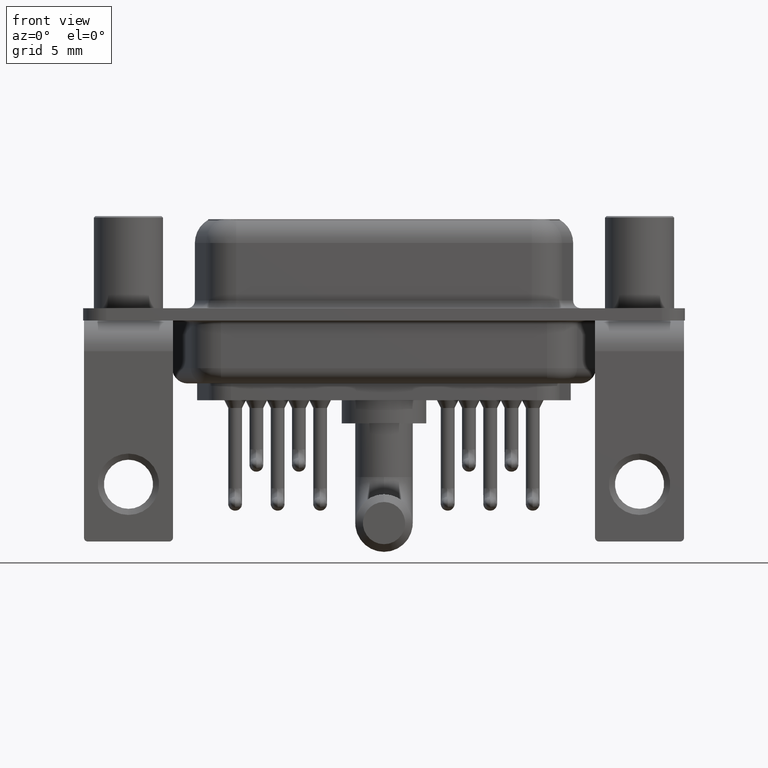
[diagram: clean part render]
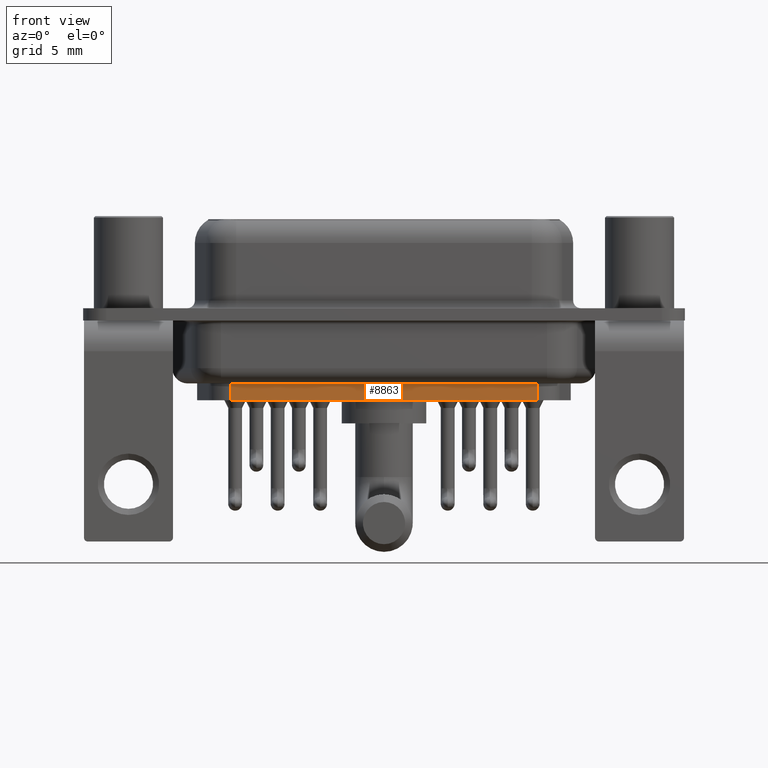
[diagram: same view with one face highlighted and labeled with its STEP entity id]
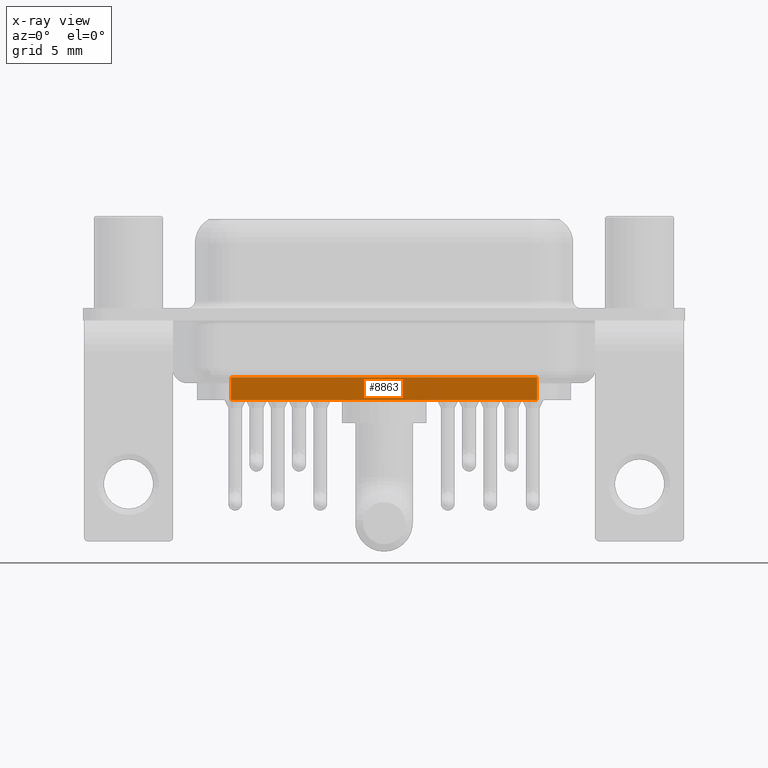
[diagram: x-ray of the same camera — body ghosted, the highlighted face saturated]
A machine part, front view. The second image highlights one B-rep face of the part: STEP entity #8863.
The next image is the same camera in x-ray: the body ghosted, the highlighted face saturated — about 0% of this face is hidden behind the body in this view.
In plain terms, the highlighted planar face has unit normal (-0, -1, 0).
Its self-contained STEP definition (entity closure, byte-faithful):
#409 = VECTOR ( 'NONE', #12339, 1000.000000000000000 ) ;
#1256 = CARTESIAN_POINT ( 'NONE',  ( 6.681144415194952835, -3.499999999999996003, -5.599999999999998757 ) ) ;
#2479 = EDGE_CURVE ( 'NONE', #4713, #19130, #11962, .T. ) ;
#2660 = LINE ( 'NONE', #2881, #19584 ) ;
#2881 = CARTESIAN_POINT ( 'NONE',  ( 26.61885558480503988, -3.500000000000000000, -3.099999999999999645 ) ) ;
#4051 = VERTEX_POINT ( 'NONE', #5896 ) ;
#4232 = CARTESIAN_POINT ( 'NONE',  ( 26.61885558480503988, -3.500000000000000000, -4.096662954709576532 ) ) ;
#4627 = ORIENTED_EDGE ( 'NONE', *, *, #2479, .T. ) ;
#4713 = VERTEX_POINT ( 'NONE', #4232 ) ;
#4806 = VECTOR ( 'NONE', #9658, 1000.000000000000000 ) ;
#5390 = EDGE_CURVE ( 'NONE', #4713, #4051, #2660, .T. ) ;
#5448 = EDGE_CURVE ( 'NONE', #4051, #15230, #9113, .T. ) ;
#5896 = CARTESIAN_POINT ( 'NONE',  ( 26.61885558480503988, -3.500000000000000000, -5.599999999999998757 ) ) ;
#6626 = ORIENTED_EDGE ( 'NONE', *, *, #5390, .F. ) ;
#7521 = VECTOR ( 'NONE', #10354, 1000.000000000000000 ) ;
#8242 = LINE ( 'NONE', #20996, #4806 ) ;
#8643 = ORIENTED_EDGE ( 'NONE', *, *, #5448, .F. ) ;
#8863 = ADVANCED_FACE ( 'NONE', ( #11653 ), #14971, .T. ) ;
#9113 = LINE ( 'NONE', #1256, #409 ) ;
#9658 = DIRECTION ( 'NONE',  ( 0.0000000000000000000, 0.0000000000000000000, -1.000000000000000000 ) ) ;
#10354 = DIRECTION ( 'NONE',  ( -1.000000000000000000, -1.273492887410165195E-16, 0.0000000000000000000 ) ) ;
#10751 = ORIENTED_EDGE ( 'NONE', *, *, #14014, .T. ) ;
#10831 = DIRECTION ( 'NONE',  ( 0.0000000000000000000, 0.0000000000000000000, -1.000000000000000000 ) ) ;
#11064 = EDGE_LOOP ( 'NONE', ( #6626, #4627, #10751, #8643 ) ) ;
#11653 = FACE_OUTER_BOUND ( 'NONE', #11064, .T. ) ;
#11962 = LINE ( 'NONE', #15589, #7521 ) ;
#12339 = DIRECTION ( 'NONE',  ( -1.000000000000000000, 1.305107287305586133E-16, -0.0000000000000000000 ) ) ;
#13377 = CARTESIAN_POINT ( 'NONE',  ( 6.681144415194952835, -3.499999999999996003, -3.099999999999999645 ) ) ;
#14014 = EDGE_CURVE ( 'NONE', #19130, #15230, #8242, .T. ) ;
#14653 = DIRECTION ( 'NONE',  ( -1.305107287305586380E-16, -1.000000000000000000, 0.0000000000000000000 ) ) ;
#14868 = AXIS2_PLACEMENT_3D ( 'NONE', #13377, #14653, #19663 ) ;
#14971 = PLANE ( 'NONE',  #14868 ) ;
#15230 = VERTEX_POINT ( 'NONE', #15892 ) ;
#15589 = CARTESIAN_POINT ( 'NONE',  ( 6.433668053078281268, -3.499999999999996003, -4.096662954709576532 ) ) ;
#15892 = CARTESIAN_POINT ( 'NONE',  ( 6.681144415194952835, -3.499999999999996003, -5.599999999999998757 ) ) ;
#18961 = CARTESIAN_POINT ( 'NONE',  ( 6.681144415194952835, -3.499999999999996003, -4.096662954709576532 ) ) ;
#19130 = VERTEX_POINT ( 'NONE', #18961 ) ;
#19584 = VECTOR ( 'NONE', #10831, 1000.000000000000000 ) ;
#19663 = DIRECTION ( 'NONE',  ( 1.000000000000000000, -1.305107287305586380E-16, 0.0000000000000000000 ) ) ;
#20996 = CARTESIAN_POINT ( 'NONE',  ( 6.681144415194952835, -3.499999999999996003, -3.099999999999999645 ) ) ;